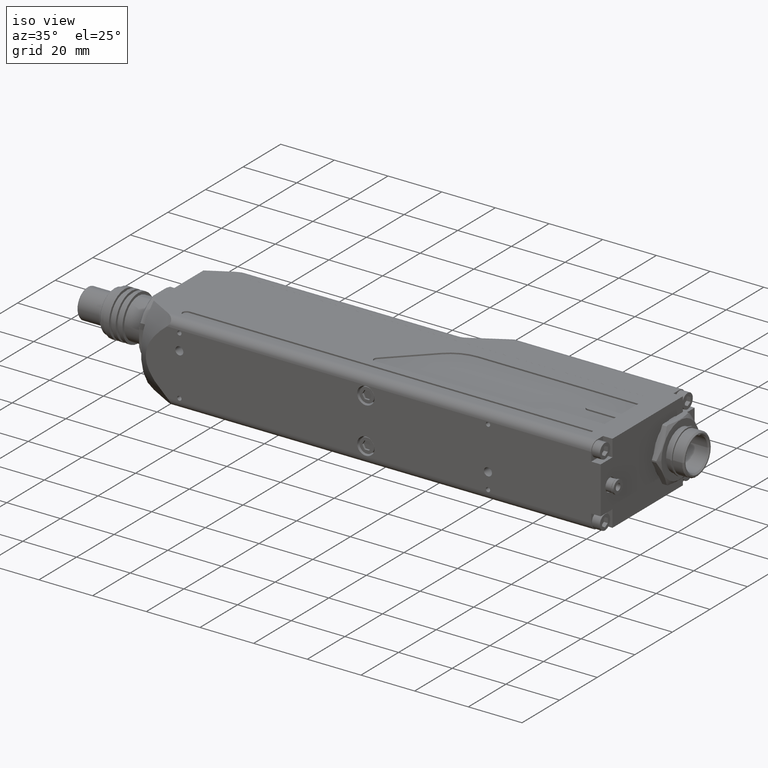
[diagram: clean part render]
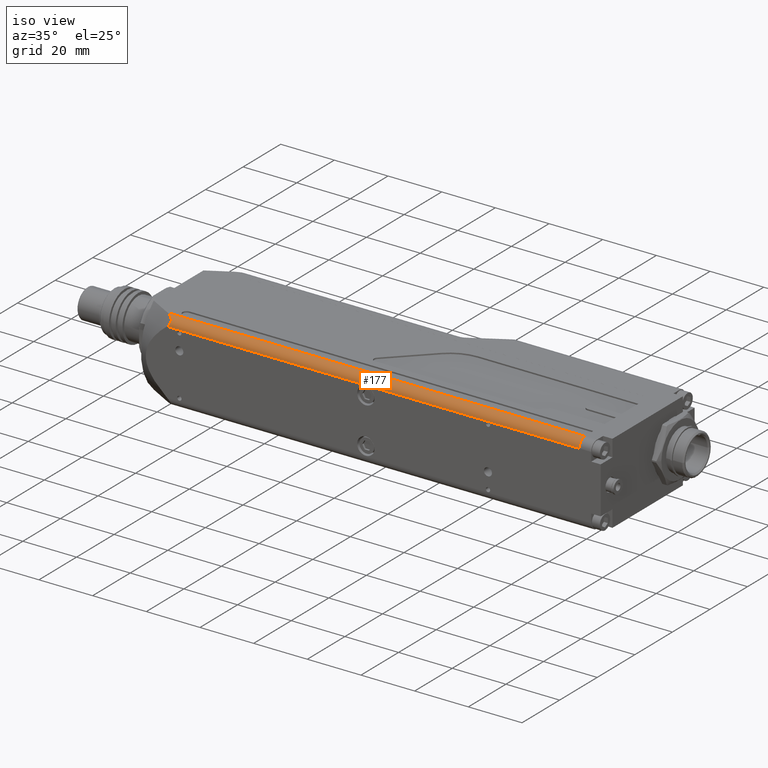
[diagram: same view with one face highlighted and labeled with its STEP entity id]
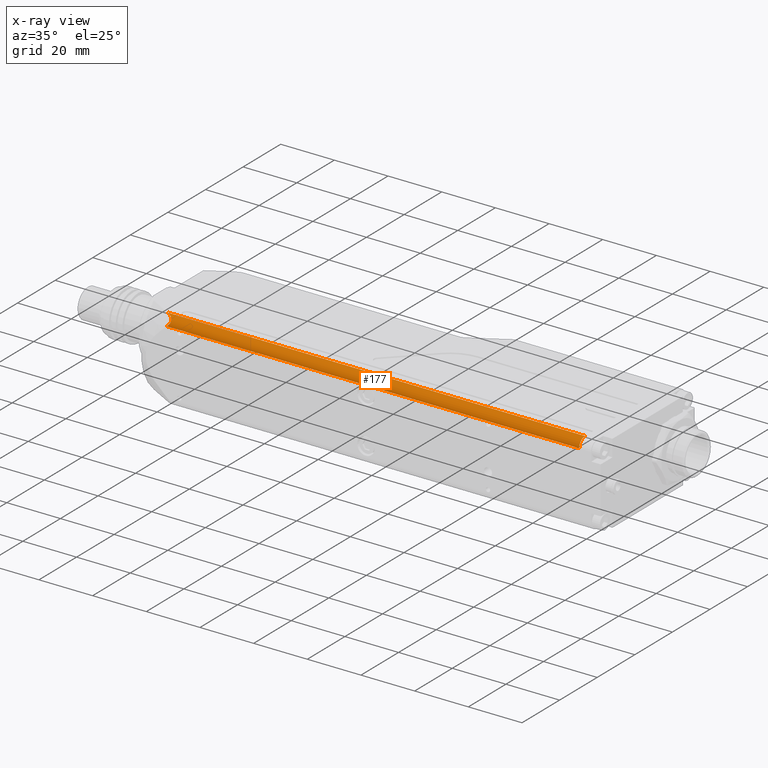
[diagram: x-ray of the same camera — body ghosted, the highlighted face saturated]
A machine part, iso view. The second image highlights one B-rep face of the part: STEP entity #177.
The next image is the same camera in x-ray: the body ghosted, the highlighted face saturated — about 0% of this face is hidden behind the body in this view.
In plain terms, the highlighted cylindrical surface (edge-blend (fillet) strip) has radius 3 mm, axis along (1, -0, 0).
Its self-contained STEP definition (entity closure, byte-faithful):
#177 = ADVANCED_FACE ( 'NONE', ( #8209 ), #6499, .T. ) ;
#494 = CARTESIAN_POINT ( 'NONE',  ( 44.36262741667627600, -21.00000000000000000, 11.99999999999999800 ) ) ;
#573 = CARTESIAN_POINT ( 'NONE',  ( 44.77318756975706300, -20.98597456008961600, 12.35630717066626100 ) ) ;
#1336 = CARTESIAN_POINT ( 'NONE',  ( 198.0000000000000000, -18.00000000000000400, 15.00000000000000000 ) ) ;
#1454 = CARTESIAN_POINT ( 'NONE',  ( 45.47428686793671200, -20.48349124076780500, 13.68843736863847700 ) ) ;
#1498 = CARTESIAN_POINT ( 'NONE',  ( 44.11213950113671000, -18.96831207909239900, 14.84363544181810500 ) ) ;
#1671 = EDGE_LOOP ( 'NONE', ( #7895, #4699, #2585, #4506 ) ) ;
#1889 = DIRECTION ( 'NONE',  ( 0.0000000000000000000, 0.0000000000000000000, -1.000000000000000000 ) ) ;
#2475 = CARTESIAN_POINT ( 'NONE',  ( 45.37815839144484200, -20.14897108884883200, 14.11052351193401900 ) ) ;
#2585 = ORIENTED_EDGE ( 'NONE', *, *, #4710, .F. ) ;
#3002 = EDGE_CURVE ( 'NONE', #4942, #8419, #10925, .T. ) ;
#3218 = CARTESIAN_POINT ( 'NONE',  ( 45.03886921043516600, -20.92791081504965000, 12.66188214771055000 ) ) ;
#3335 = CARTESIAN_POINT ( 'NONE',  ( 45.26530870177235500, -20.83487316559791900, 12.98828741466963300 ) ) ;
#3390 = CARTESIAN_POINT ( 'NONE',  ( 42.49140181588038000, -17.99999999999999600, 15.00000000000000000 ) ) ;
#3620 = DIRECTION ( 'NONE',  ( 1.000000000000000000, -0.0000000000000000000, 0.0000000000000000000 ) ) ;
#3938 = AXIS2_PLACEMENT_3D ( 'NONE', #7277, #3620, #1889 ) ;
#4497 = CIRCLE ( 'NONE', #11363, 2.999999999999999100 ) ;
#4506 = ORIENTED_EDGE ( 'NONE', *, *, #5776, .F. ) ;
#4699 = ORIENTED_EDGE ( 'NONE', *, *, #5265, .F. ) ;
#4710 = EDGE_CURVE ( 'NONE', #6291, #5922, #4497, .T. ) ;
#4942 = VERTEX_POINT ( 'NONE', #9339 ) ;
#5027 = CARTESIAN_POINT ( 'NONE',  ( 45.45280534574118300, -20.62626594319732100, 13.45646032777660200 ) ) ;
#5191 = CARTESIAN_POINT ( 'NONE',  ( 198.0000000000000000, -21.00000000000000000, 12.00000000000000000 ) ) ;
#5265 = EDGE_CURVE ( 'NONE', #5922, #4942, #5339, .T. ) ;
#5339 = LINE ( 'NONE', #6307, #7163 ) ;
#5776 = EDGE_CURVE ( 'NONE', #8419, #6291, #8284, .T. ) ;
#5885 = CARTESIAN_POINT ( 'NONE',  ( 44.32773813174213700, -19.12229288238355800, 14.78787785902460800 ) ) ;
#5922 = VERTEX_POINT ( 'NONE', #5191 ) ;
#5924 = CARTESIAN_POINT ( 'NONE',  ( 45.42172562780413600, -20.68840076652761400, 13.33748015262091800 ) ) ;
#6122 = DIRECTION ( 'NONE',  ( 1.000000000000000000, -0.0000000000000000000, -0.0000000000000000000 ) ) ;
#6291 = VERTEX_POINT ( 'NONE', #1336 ) ;
#6307 = CARTESIAN_POINT ( 'NONE',  ( 34.00000000000000700, -21.00000000000000000, 12.00000000000000000 ) ) ;
#6499 = CYLINDRICAL_SURFACE ( 'NONE', #3938, 2.999999999999999100 ) ;
#6826 = CARTESIAN_POINT ( 'NONE',  ( 42.49140181588038000, -17.99999999999999600, 15.00000000000000000 ) ) ;
#6950 = CARTESIAN_POINT ( 'NONE',  ( 0.0000000000000000000, -18.00000000000000400, 15.00000000000000000 ) ) ;
#7136 = DIRECTION ( 'NONE',  ( -1.000000000000000000, 0.0000000000000000000, -0.0000000000000000000 ) ) ;
#7163 = VECTOR ( 'NONE', #7136, 1000.000000000000000 ) ;
#7277 = CARTESIAN_POINT ( 'NONE',  ( 0.0000000000000000000, -18.00000000000000400, 12.00000000000000000 ) ) ;
#7698 = CARTESIAN_POINT ( 'NONE',  ( 44.73304237434837900, -19.44467718386539800, 14.63528216802436400 ) ) ;
#7860 = CARTESIAN_POINT ( 'NONE',  ( 45.46484280162596300, -20.40490157947973800, 13.79848407048810800 ) ) ;
#7895 = ORIENTED_EDGE ( 'NONE', *, *, #3002, .F. ) ;
#8000 = VECTOR ( 'NONE', #8700, 1000.000000000000000 ) ;
#8066 = DIRECTION ( 'NONE',  ( 0.0000000000000000000, 0.0000000000000000000, 1.000000000000000000 ) ) ;
#8209 = FACE_OUTER_BOUND ( 'NONE', #1671, .T. ) ;
#8284 = LINE ( 'NONE', #6950, #8000 ) ;
#8419 = VERTEX_POINT ( 'NONE', #3390 ) ;
#8614 = CARTESIAN_POINT ( 'NONE',  ( 43.44075998629307400, -18.52225407390178400, 14.97032219064093400 ) ) ;
#8700 = DIRECTION ( 'NONE',  ( 1.000000000000000000, -0.0000000000000000000, 0.0000000000000000000 ) ) ;
#9339 = CARTESIAN_POINT ( 'NONE',  ( 44.36262741667627600, -21.00000000000000000, 11.99999999999999800 ) ) ;
#9544 = CARTESIAN_POINT ( 'NONE',  ( 42.97217853655081400, -18.25285215221281000, 15.00000000000000500 ) ) ;
#9626 = CARTESIAN_POINT ( 'NONE',  ( 45.32810508945901500, -20.79246231578158100, 13.10385961746089100 ) ) ;
#10529 = CARTESIAN_POINT ( 'NONE',  ( 45.12132605632861300, -20.90219570118813800, 12.76842565744949600 ) ) ;
#10601 = CARTESIAN_POINT ( 'NONE',  ( 44.57427684726051400, -20.99999999999999600, 12.17235478618613200 ) ) ;
#10925 = B_SPLINE_CURVE_WITH_KNOTS ( 'NONE', 3,
 ( #494, #10601, #573, #3218, #10529, #3335, #9626, #5924, #5027, #1454, #7860, #2475, #11434, #11399, #7698, #5885, #1498, #8614, #9544, #6826 ),
 .UNSPECIFIED., .F., .F.,
 ( 4, 2, 2, 2, 2, 2, 2, 2, 2, 4 ),
 ( 7.757919228897728500E-018, 0.0008134177454966995100, 0.001220126618245044500, 0.001626835490993389700, 0.002033544363741734600, 0.002440253236490080000, 0.003253670981986780300, 0.004067088727483480500, 0.004880506472980180800, 0.006507341963973587400 ),
 .UNSPECIFIED. ) ;
#11363 = AXIS2_PLACEMENT_3D ( 'NONE', #11636, #6122, #8066 ) ;
#11399 = CARTESIAN_POINT ( 'NONE',  ( 44.92606321958908200, -19.61583366843294800, 14.53706223175833400 ) ) ;
#11434 = CARTESIAN_POINT ( 'NONE',  ( 45.24714550887559700, -19.96591578495167200, 14.27657161941678200 ) ) ;
#11636 = CARTESIAN_POINT ( 'NONE',  ( 198.0000000000000000, -18.00000000000000400, 12.00000000000000000 ) ) ;